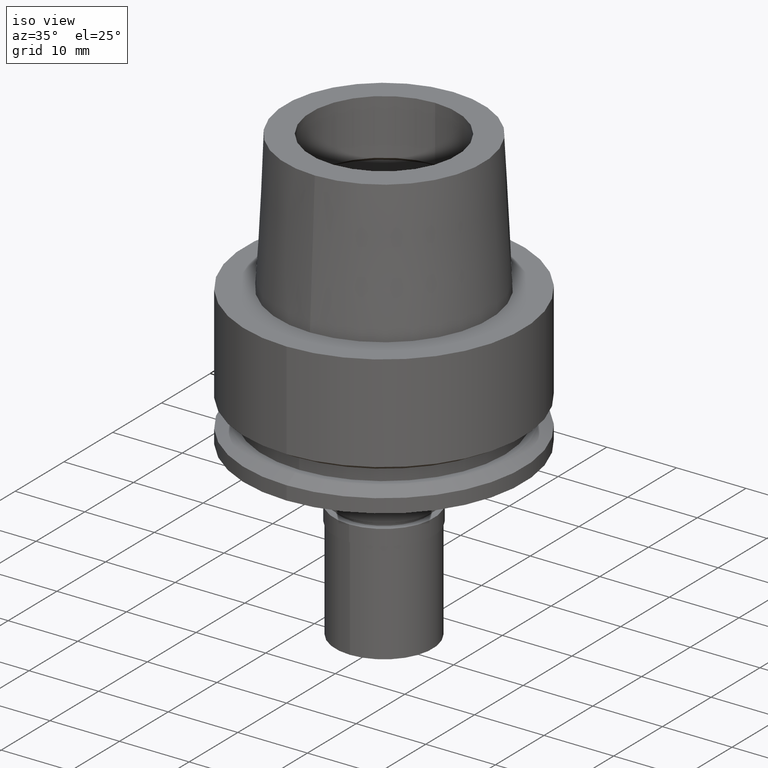
[diagram: clean part render]
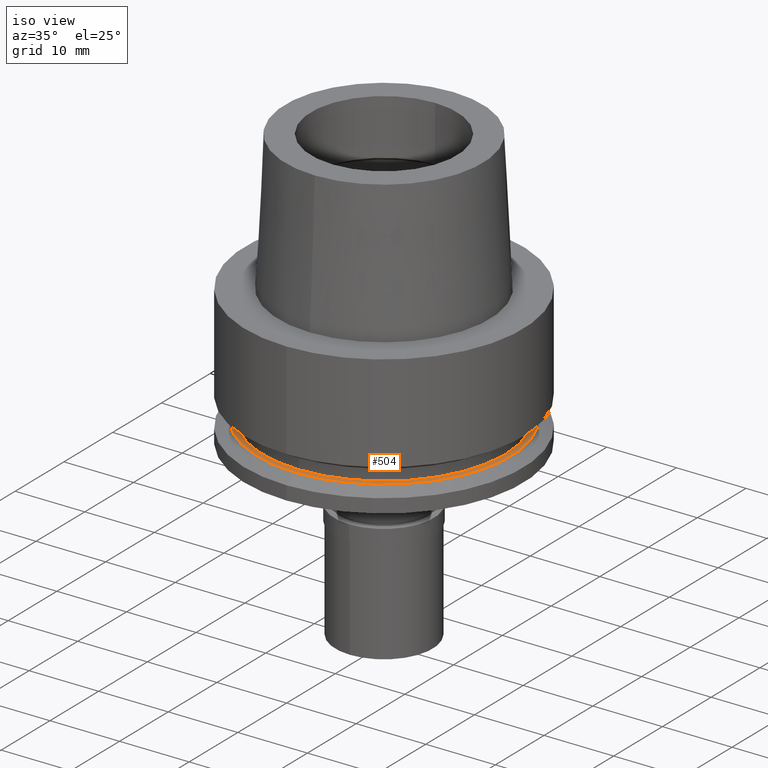
[diagram: same view with one face highlighted and labeled with its STEP entity id]
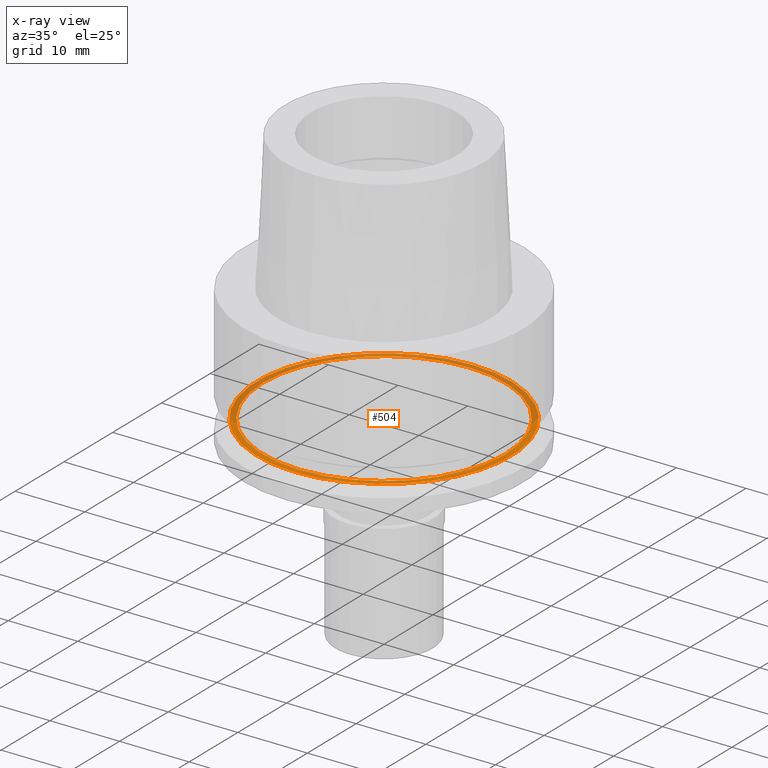
[diagram: x-ray of the same camera — body ghosted, the highlighted face saturated]
A machine part, iso view. The second image highlights one B-rep face of the part: STEP entity #504.
The next image is the same camera in x-ray: the body ghosted, the highlighted face saturated — about 51% of this face is hidden behind the body in this view.
In plain terms, the highlighted planar face has unit normal (0, 0, 1).
Its self-contained STEP definition (entity closure, byte-faithful):
#22 = DIRECTION ( 'NONE',  ( 0.0000000000000000000, 0.0000000000000000000, -1.000000000000000000 ) ) ;
#113 = DIRECTION ( 'NONE',  ( 0.0000000000000000000, 1.000000000000000000, 0.0000000000000000000 ) ) ;
#159 = CIRCLE ( 'NONE', #2022, 18.23205080331999994 ) ;
#211 = VERTEX_POINT ( 'NONE', #2534 ) ;
#298 = EDGE_LOOP ( 'NONE', ( #2506, #2163 ) ) ;
#299 = EDGE_CURVE ( 'NONE', #1194, #746, #2500, .T. ) ;
#390 = CARTESIAN_POINT ( 'NONE',  ( 0.0000000000000000000, 0.0000000000000000000, -17.00000000000000000 ) ) ;
#399 = PLANE ( 'NONE',  #558 ) ;
#465 = EDGE_CURVE ( 'NONE', #211, #1845, #159, .T. ) ;
#504 = ADVANCED_FACE ( 'NONE', ( #1956, #716 ), #399, .T. ) ;
#558 = AXIS2_PLACEMENT_3D ( 'NONE', #1220, #968, #1234 ) ;
#579 = CARTESIAN_POINT ( 'NONE',  ( 0.0000000000000000000, 0.0000000000000000000, -17.00000000000000000 ) ) ;
#659 = DIRECTION ( 'NONE',  ( 0.0000000000000000000, 0.0000000000000000000, 1.000000000000000000 ) ) ;
#716 = FACE_BOUND ( 'NONE', #298, .T. ) ;
#746 = VERTEX_POINT ( 'NONE', #2437 ) ;
#780 = AXIS2_PLACEMENT_3D ( 'NONE', #390, #818, #960 ) ;
#818 = DIRECTION ( 'NONE',  ( 0.0000000000000000000, 0.0000000000000000000, 1.000000000000000000 ) ) ;
#845 = CARTESIAN_POINT ( 'NONE',  ( 0.0000000000000000000, 0.0000000000000000000, -17.00000000000000000 ) ) ;
#943 = CARTESIAN_POINT ( 'NONE',  ( 0.0000000000000000000, -17.39999999999999858, -17.00000000000000000 ) ) ;
#960 = DIRECTION ( 'NONE',  ( 0.0000000000000000000, 1.000000000000000000, 0.0000000000000000000 ) ) ;
#968 = DIRECTION ( 'NONE',  ( 0.0000000000000000000, 0.0000000000000000000, 1.000000000000000000 ) ) ;
#970 = CARTESIAN_POINT ( 'NONE',  ( 0.0000000000000000000, -18.23205080331999994, -17.00000000000000000 ) ) ;
#990 = AXIS2_PLACEMENT_3D ( 'NONE', #579, #22, #1032 ) ;
#1032 = DIRECTION ( 'NONE',  ( 0.0000000000000000000, -1.000000000000000000, 0.0000000000000000000 ) ) ;
#1194 = VERTEX_POINT ( 'NONE', #943 ) ;
#1198 = ORIENTED_EDGE ( 'NONE', *, *, #465, .F. ) ;
#1220 = CARTESIAN_POINT ( 'NONE',  ( 0.0000000000000000000, 0.0000000000000000000, -17.00000000000000000 ) ) ;
#1234 = DIRECTION ( 'NONE',  ( 1.000000000000000000, 0.0000000000000000000, 0.0000000000000000000 ) ) ;
#1258 = CIRCLE ( 'NONE', #990, 18.23205080331999994 ) ;
#1372 = EDGE_CURVE ( 'NONE', #1845, #211, #1258, .T. ) ;
#1428 = AXIS2_PLACEMENT_3D ( 'NONE', #845, #659, #2309 ) ;
#1784 = EDGE_LOOP ( 'NONE', ( #1198, #1833 ) ) ;
#1833 = ORIENTED_EDGE ( 'NONE', *, *, #1372, .F. ) ;
#1845 = VERTEX_POINT ( 'NONE', #970 ) ;
#1946 = CIRCLE ( 'NONE', #780, 17.39999999999999858 ) ;
#1956 = FACE_OUTER_BOUND ( 'NONE', #1784, .T. ) ;
#1987 = DIRECTION ( 'NONE',  ( 0.0000000000000000000, 0.0000000000000000000, -1.000000000000000000 ) ) ;
#2022 = AXIS2_PLACEMENT_3D ( 'NONE', #2151, #1987, #113 ) ;
#2151 = CARTESIAN_POINT ( 'NONE',  ( 0.0000000000000000000, 0.0000000000000000000, -17.00000000000000000 ) ) ;
#2163 = ORIENTED_EDGE ( 'NONE', *, *, #299, .F. ) ;
#2309 = DIRECTION ( 'NONE',  ( 0.0000000000000000000, -1.000000000000000000, 0.0000000000000000000 ) ) ;
#2422 = EDGE_CURVE ( 'NONE', #746, #1194, #1946, .T. ) ;
#2437 = CARTESIAN_POINT ( 'NONE',  ( 0.0000000000000000000, 17.39999999999999858, -17.00000000000000000 ) ) ;
#2500 = CIRCLE ( 'NONE', #1428, 17.39999999999999858 ) ;
#2506 = ORIENTED_EDGE ( 'NONE', *, *, #2422, .F. ) ;
#2534 = CARTESIAN_POINT ( 'NONE',  ( 0.0000000000000000000, 18.23205080331999994, -17.00000000000000000 ) ) ;